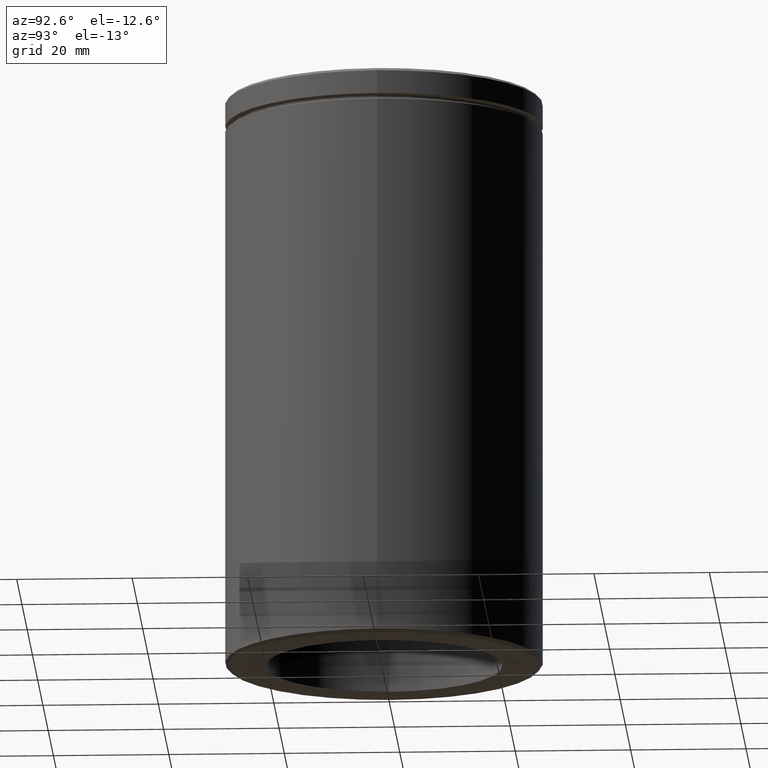
[diagram: clean part render]
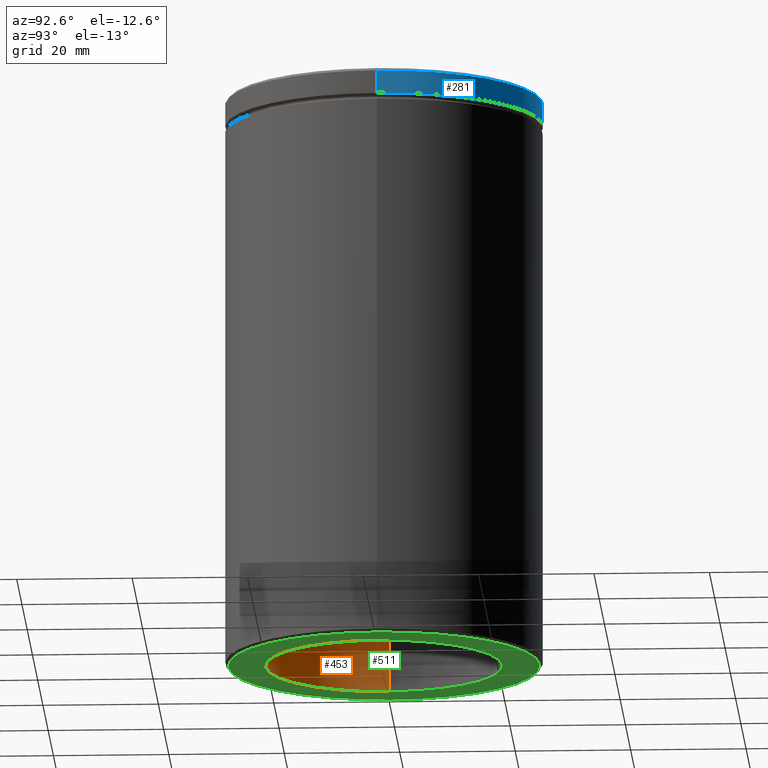
[diagram: same view with three faces highlighted in distinct colors, each labeled with its STEP entity id]
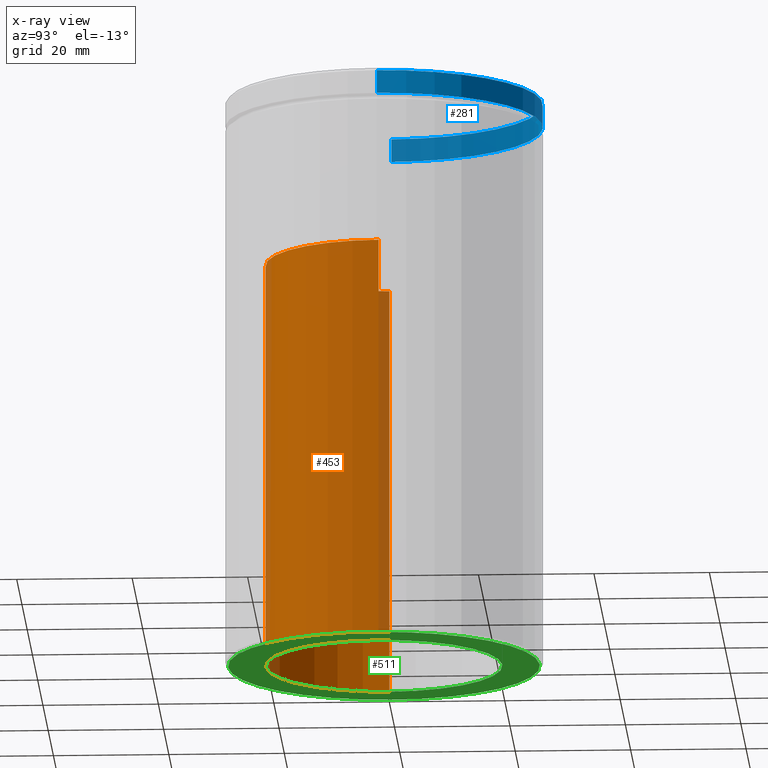
[diagram: x-ray of the same camera — body ghosted, the three highlighted faces saturated]
A machine part, auxiliary view with three faces highlighted in distinct colors.
The next image is the same camera in x-ray (body ghosted, the three faces saturated) — at least one of them is partly hidden behind the body in this view.
Their STEP definitions:

[orange] entity #453 — the highlighted cylindrical surface (partial cylindrical patch) has radius 20.5 mm, axis along (-0, -0, -1).
#17 = CARTESIAN_POINT ( 'NONE',  ( -20.50000000000000000, 0.000000000000000000, -29.00000000000001066 ) ) ;
#31 = CARTESIAN_POINT ( 'NONE',  ( 0.000000000000000000, 0.000000000000000000, -29.00000000000001066 ) ) ;
#43 = VERTEX_POINT ( 'NONE', #499 ) ;
#62 = EDGE_CURVE ( 'NONE', #347, #368, #509, .T. ) ;
#76 = EDGE_CURVE ( 'NONE', #534, #43, #462, .T. ) ;
#90 = DIRECTION ( 'NONE',  ( 0.000000000000000000, 0.000000000000000000, -1.000000000000000000 ) ) ;
#118 = AXIS2_PLACEMENT_3D ( 'NONE', #243, #548, #414 ) ;
#148 = ORIENTED_EDGE ( 'NONE', *, *, #503, .T. ) ;
#161 = CARTESIAN_POINT ( 'NONE',  ( 20.50000000000000000, 2.510525938252074481E-15, -29.00000000000001066 ) ) ;
#166 = EDGE_CURVE ( 'NONE', #534, #347, #400, .T. ) ;
#221 = CARTESIAN_POINT ( 'NONE',  ( 20.50000000000000000, 2.510525938252074481E-15, -29.00000000000001066 ) ) ;
#241 = CARTESIAN_POINT ( 'NONE',  ( -20.50000000000000000, 0.000000000000000000, -29.00000000000001066 ) ) ;
#242 = CIRCLE ( 'NONE', #292, 20.50000000000000000 ) ;
#243 = CARTESIAN_POINT ( 'NONE',  ( 0.000000000000000000, 0.000000000000000000, -29.00000000000001066 ) ) ;
#250 = EDGE_LOOP ( 'NONE', ( #394, #316, #148, #389 ) ) ;
#282 = DIRECTION ( 'NONE',  ( -0.000000000000000000, -0.000000000000000000, -1.000000000000000000 ) ) ;
#292 = AXIS2_PLACEMENT_3D ( 'NONE', #388, #90, #393 ) ;
#295 = DIRECTION ( 'NONE',  ( -1.000000000000000000, 0.000000000000000000, 0.000000000000000000 ) ) ;
#316 = ORIENTED_EDGE ( 'NONE', *, *, #76, .T. ) ;
#327 = VECTOR ( 'NONE', #545, 1000.000000000000000 ) ;
#347 = VERTEX_POINT ( 'NONE', #17 ) ;
#368 = VERTEX_POINT ( 'NONE', #470 ) ;
#380 = FACE_OUTER_BOUND ( 'NONE', #250, .T. ) ;
#383 = CYLINDRICAL_SURFACE ( 'NONE', #489, 20.50000000000000000 ) ;
#388 = CARTESIAN_POINT ( 'NONE',  ( 0.000000000000000000, 0.000000000000000000, -100.0000000000000000 ) ) ;
#389 = ORIENTED_EDGE ( 'NONE', *, *, #62, .F. ) ;
#393 = DIRECTION ( 'NONE',  ( -1.000000000000000000, 0.000000000000000000, 0.000000000000000000 ) ) ;
#394 = ORIENTED_EDGE ( 'NONE', *, *, #166, .F. ) ;
#400 = CIRCLE ( 'NONE', #118, 20.50000000000000000 ) ;
#409 = VECTOR ( 'NONE', #282, 1000.000000000000000 ) ;
#414 = DIRECTION ( 'NONE',  ( -1.000000000000000000, 0.000000000000000000, 0.000000000000000000 ) ) ;
#453 = ADVANCED_FACE ( 'NONE', ( #380 ), #383, .F. ) ;
#462 = LINE ( 'NONE', #161, #409 ) ;
#470 = CARTESIAN_POINT ( 'NONE',  ( -20.50000000000000000, 0.000000000000000000, -100.0000000000000000 ) ) ;
#489 = AXIS2_PLACEMENT_3D ( 'NONE', #31, #516, #295 ) ;
#499 = CARTESIAN_POINT ( 'NONE',  ( 20.50000000000000000, 2.510525938252074481E-15, -100.0000000000000000 ) ) ;
#503 = EDGE_CURVE ( 'NONE', #43, #368, #242, .T. ) ;
#509 = LINE ( 'NONE', #241, #327 ) ;
#516 = DIRECTION ( 'NONE',  ( -0.000000000000000000, -0.000000000000000000, -1.000000000000000000 ) ) ;
#534 = VERTEX_POINT ( 'NONE', #221 ) ;
#545 = DIRECTION ( 'NONE',  ( -0.000000000000000000, -0.000000000000000000, -1.000000000000000000 ) ) ;
#548 = DIRECTION ( 'NONE',  ( 0.000000000000000000, 0.000000000000000000, -1.000000000000000000 ) ) ;

[blue] entity #281 — the highlighted cylindrical surface (partial cylindrical patch) has radius 27.5 mm, axis along (-0, -0, 1).
#11 = CARTESIAN_POINT ( 'NONE',  ( 0.000000000000000000, 0.000000000000000000, -4.500000000000000888 ) ) ;
#12 = EDGE_LOOP ( 'NONE', ( #319, #200, #179, #83 ) ) ;
#20 = CARTESIAN_POINT ( 'NONE',  ( 27.50000000000000000, 0.000000000000000000, -0.5000000000000143219 ) ) ;
#27 = LINE ( 'NONE', #296, #449 ) ;
#34 = DIRECTION ( 'NONE',  ( -0.000000000000000000, -0.000000000000000000, 1.000000000000000000 ) ) ;
#36 = CARTESIAN_POINT ( 'NONE',  ( 27.50000000000000000, 0.000000000000000000, 0.000000000000000000 ) ) ;
#37 = VERTEX_POINT ( 'NONE', #20 ) ;
#55 = VECTOR ( 'NONE', #34, 1000.000000000000000 ) ;
#79 = DIRECTION ( 'NONE',  ( 0.000000000000000000, 0.000000000000000000, -1.000000000000000000 ) ) ;
#83 = ORIENTED_EDGE ( 'NONE', *, *, #432, .F. ) ;
#91 = CYLINDRICAL_SURFACE ( 'NONE', #352, 27.50000000000000000 ) ;
#128 = VERTEX_POINT ( 'NONE', #365 ) ;
#146 = DIRECTION ( 'NONE',  ( -0.000000000000000000, -0.000000000000000000, 1.000000000000000000 ) ) ;
#164 = CARTESIAN_POINT ( 'NONE',  ( -27.50000000000000000, 3.367778697655221307E-15, -0.5000000000000143219 ) ) ;
#179 = ORIENTED_EDGE ( 'NONE', *, *, #378, .T. ) ;
#197 = AXIS2_PLACEMENT_3D ( 'NONE', #421, #79, #210 ) ;
#200 = ORIENTED_EDGE ( 'NONE', *, *, #371, .T. ) ;
#210 = DIRECTION ( 'NONE',  ( 1.000000000000000000, 0.000000000000000000, 0.000000000000000000 ) ) ;
#222 = FACE_OUTER_BOUND ( 'NONE', #12, .T. ) ;
#230 = CIRCLE ( 'NONE', #197, 27.50000000000000000 ) ;
#279 = CARTESIAN_POINT ( 'NONE',  ( 0.000000000000000000, 0.000000000000000000, 0.000000000000000000 ) ) ;
#281 = ADVANCED_FACE ( 'NONE', ( #222 ), #91, .T. ) ;
#296 = CARTESIAN_POINT ( 'NONE',  ( -27.50000000000000000, 3.367778697655221307E-15, 0.000000000000000000 ) ) ;
#319 = ORIENTED_EDGE ( 'NONE', *, *, #338, .T. ) ;
#338 = EDGE_CURVE ( 'NONE', #480, #128, #448, .T. ) ;
#352 = AXIS2_PLACEMENT_3D ( 'NONE', #279, #535, #395 ) ;
#365 = CARTESIAN_POINT ( 'NONE',  ( -27.50000000000000000, 3.367778697655221307E-15, -4.500000000000000888 ) ) ;
#371 = EDGE_CURVE ( 'NONE', #128, #403, #27, .T. ) ;
#376 = DIRECTION ( 'NONE',  ( -0.000000000000000000, -0.000000000000000000, 1.000000000000000000 ) ) ;
#378 = EDGE_CURVE ( 'NONE', #403, #37, #230, .T. ) ;
#395 = DIRECTION ( 'NONE',  ( 1.000000000000000000, 0.000000000000000000, 0.000000000000000000 ) ) ;
#403 = VERTEX_POINT ( 'NONE', #164 ) ;
#421 = CARTESIAN_POINT ( 'NONE',  ( 0.000000000000000000, 0.000000000000000000, -0.5000000000000143219 ) ) ;
#432 = EDGE_CURVE ( 'NONE', #480, #37, #514, .T. ) ;
#442 = CARTESIAN_POINT ( 'NONE',  ( 27.50000000000000000, 0.000000000000000000, -4.500000000000000888 ) ) ;
#448 = CIRCLE ( 'NONE', #513, 27.50000000000000000 ) ;
#449 = VECTOR ( 'NONE', #376, 1000.000000000000000 ) ;
#480 = VERTEX_POINT ( 'NONE', #442 ) ;
#496 = DIRECTION ( 'NONE',  ( 1.000000000000000000, 0.000000000000000000, 0.000000000000000000 ) ) ;
#513 = AXIS2_PLACEMENT_3D ( 'NONE', #11, #146, #496 ) ;
#514 = LINE ( 'NONE', #36, #55 ) ;
#535 = DIRECTION ( 'NONE',  ( -0.000000000000000000, -0.000000000000000000, 1.000000000000000000 ) ) ;

[green] entity #511 — the highlighted planar face has unit normal (0, 0, -1).
#40 = AXIS2_PLACEMENT_3D ( 'NONE', #72, #332, #157 ) ;
#42 = CARTESIAN_POINT ( 'NONE',  ( 26.99999999999996803, 0.000000000000000000, -100.0000000000000000 ) ) ;
#43 = VERTEX_POINT ( 'NONE', #499 ) ;
#48 = CARTESIAN_POINT ( 'NONE',  ( 0.000000000000000000, 27.50000000000000000, -100.0000000000000000 ) ) ;
#52 = EDGE_LOOP ( 'NONE', ( #446, #563 ) ) ;
#59 = DIRECTION ( 'NONE',  ( -1.000000000000000000, 0.000000000000000000, 0.000000000000000000 ) ) ;
#64 = CIRCLE ( 'NONE', #557, 26.99999999999996803 ) ;
#72 = CARTESIAN_POINT ( 'NONE',  ( 0.000000000000000000, 0.000000000000000000, -100.0000000000000000 ) ) ;
#90 = DIRECTION ( 'NONE',  ( 0.000000000000000000, 0.000000000000000000, -1.000000000000000000 ) ) ;
#95 = FACE_BOUND ( 'NONE', #52, .T. ) ;
#112 = EDGE_CURVE ( 'NONE', #518, #297, #290, .T. ) ;
#157 = DIRECTION ( 'NONE',  ( -1.000000000000000000, 0.000000000000000000, 0.000000000000000000 ) ) ;
#177 = DIRECTION ( 'NONE',  ( 0.000000000000000000, 0.000000000000000000, -1.000000000000000000 ) ) ;
#187 = DIRECTION ( 'NONE',  ( -1.000000000000000000, 0.000000000000000000, 0.000000000000000000 ) ) ;
#203 = AXIS2_PLACEMENT_3D ( 'NONE', #356, #452, #187 ) ;
#225 = DIRECTION ( 'NONE',  ( 0.000000000000000000, 0.000000000000000000, -1.000000000000000000 ) ) ;
#234 = EDGE_CURVE ( 'NONE', #368, #43, #263, .T. ) ;
#237 = EDGE_LOOP ( 'NONE', ( #339, #301 ) ) ;
#242 = CIRCLE ( 'NONE', #292, 20.50000000000000000 ) ;
#253 = EDGE_CURVE ( 'NONE', #297, #518, #64, .T. ) ;
#263 = CIRCLE ( 'NONE', #203, 20.50000000000000000 ) ;
#290 = CIRCLE ( 'NONE', #40, 26.99999999999996803 ) ;
#292 = AXIS2_PLACEMENT_3D ( 'NONE', #388, #90, #393 ) ;
#297 = VERTEX_POINT ( 'NONE', #528 ) ;
#301 = ORIENTED_EDGE ( 'NONE', *, *, #253, .T. ) ;
#332 = DIRECTION ( 'NONE',  ( 0.000000000000000000, 0.000000000000000000, -1.000000000000000000 ) ) ;
#339 = ORIENTED_EDGE ( 'NONE', *, *, #112, .T. ) ;
#354 = DIRECTION ( 'NONE',  ( -1.000000000000000000, 0.000000000000000000, -0.000000000000000000 ) ) ;
#356 = CARTESIAN_POINT ( 'NONE',  ( 0.000000000000000000, 0.000000000000000000, -100.0000000000000000 ) ) ;
#357 = PLANE ( 'NONE',  #373 ) ;
#368 = VERTEX_POINT ( 'NONE', #470 ) ;
#373 = AXIS2_PLACEMENT_3D ( 'NONE', #48, #177, #354 ) ;
#388 = CARTESIAN_POINT ( 'NONE',  ( 0.000000000000000000, 0.000000000000000000, -100.0000000000000000 ) ) ;
#393 = DIRECTION ( 'NONE',  ( -1.000000000000000000, 0.000000000000000000, 0.000000000000000000 ) ) ;
#446 = ORIENTED_EDGE ( 'NONE', *, *, #234, .F. ) ;
#452 = DIRECTION ( 'NONE',  ( 0.000000000000000000, 0.000000000000000000, -1.000000000000000000 ) ) ;
#470 = CARTESIAN_POINT ( 'NONE',  ( -20.50000000000000000, 0.000000000000000000, -100.0000000000000000 ) ) ;
#488 = CARTESIAN_POINT ( 'NONE',  ( 0.000000000000000000, 0.000000000000000000, -100.0000000000000000 ) ) ;
#499 = CARTESIAN_POINT ( 'NONE',  ( 20.50000000000000000, 2.510525938252074481E-15, -100.0000000000000000 ) ) ;
#503 = EDGE_CURVE ( 'NONE', #43, #368, #242, .T. ) ;
#511 = ADVANCED_FACE ( 'NONE', ( #529, #95 ), #357, .T. ) ;
#518 = VERTEX_POINT ( 'NONE', #42 ) ;
#528 = CARTESIAN_POINT ( 'NONE',  ( -26.99999999999996803, 3.337162527676535548E-15, -100.0000000000000000 ) ) ;
#529 = FACE_OUTER_BOUND ( 'NONE', #237, .T. ) ;
#557 = AXIS2_PLACEMENT_3D ( 'NONE', #488, #225, #59 ) ;
#563 = ORIENTED_EDGE ( 'NONE', *, *, #503, .F. ) ;